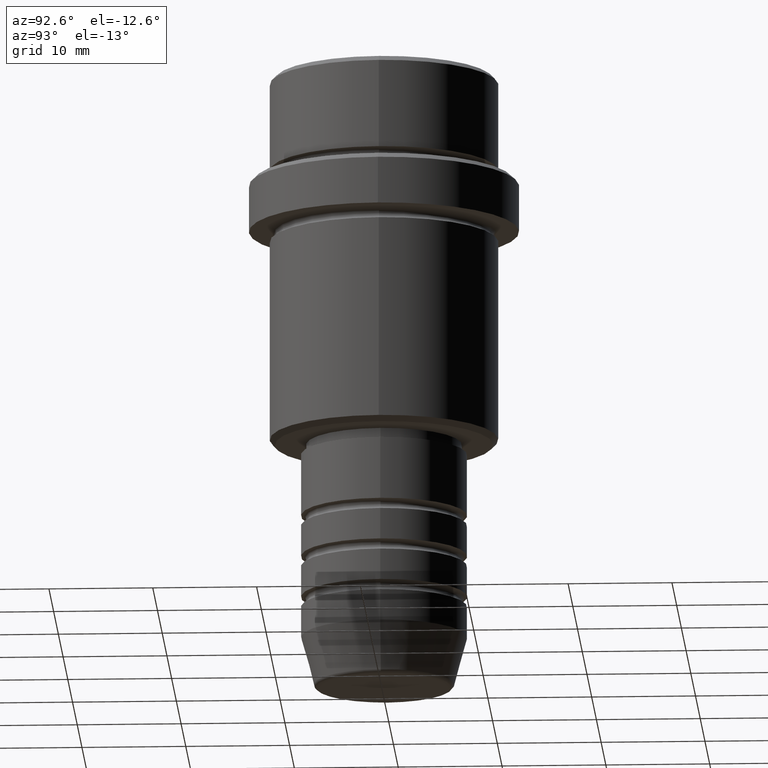
[diagram: clean part render]
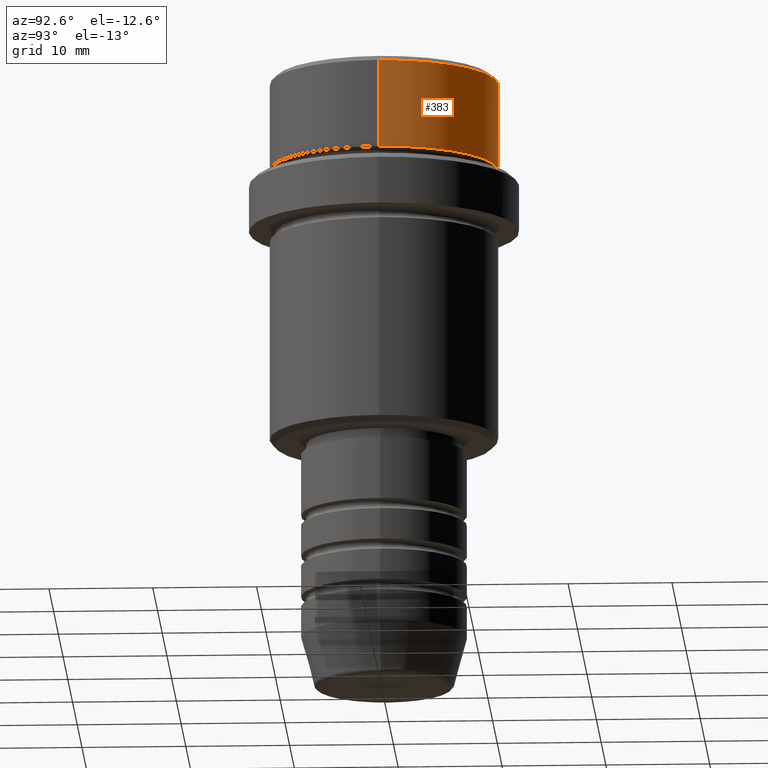
[diagram: same view with one face highlighted and labeled with its STEP entity id]
A machine part, auxiliary view. The second image highlights one B-rep face of the part: STEP entity #383.
In plain terms, the highlighted cylindrical surface (partial cylindrical patch) has radius 11 mm, axis along (-0, -0, 1).
Its self-contained STEP definition (entity closure, byte-faithful):
#22 = CIRCLE ( 'NONE', #325, 10.99999999999997158 ) ;
#50 = VERTEX_POINT ( 'NONE', #1085 ) ;
#65 = CIRCLE ( 'NONE', #181, 10.99999999999998757 ) ;
#70 = VERTEX_POINT ( 'NONE', #338 ) ;
#88 = ORIENTED_EDGE ( 'NONE', *, *, #248, .F. ) ;
#99 = EDGE_CURVE ( 'NONE', #239, #70, #1210, .T. ) ;
#181 = AXIS2_PLACEMENT_3D ( 'NONE', #370, #1166, #1334 ) ;
#188 = ORIENTED_EDGE ( 'NONE', *, *, #1290, .T. ) ;
#239 = VERTEX_POINT ( 'NONE', #252 ) ;
#248 = EDGE_CURVE ( 'NONE', #1148, #50, #914, .T. ) ;
#252 = CARTESIAN_POINT ( 'NONE',  ( -10.99999999999997158, 1.347111479062085841E-15, -9.000000000000000000 ) ) ;
#325 = AXIS2_PLACEMENT_3D ( 'NONE', #718, #509, #1260 ) ;
#338 = CARTESIAN_POINT ( 'NONE',  ( -10.99999999999998757, 1.347111479062086827E-15, -0.4999999999999813483 ) ) ;
#365 = DIRECTION ( 'NONE',  ( -0.000000000000000000, -0.000000000000000000, 1.000000000000000000 ) ) ;
#370 = CARTESIAN_POINT ( 'NONE',  ( 0.000000000000000000, 0.000000000000000000, -0.4999999999999813483 ) ) ;
#383 = ADVANCED_FACE ( 'NONE', ( #563 ), #1012, .T. ) ;
#430 = AXIS2_PLACEMENT_3D ( 'NONE', #1340, #365, #1319 ) ;
#509 = DIRECTION ( 'NONE',  ( -0.000000000000000000, -0.000000000000000000, 1.000000000000000000 ) ) ;
#563 = FACE_OUTER_BOUND ( 'NONE', #922, .T. ) ;
#718 = CARTESIAN_POINT ( 'NONE',  ( 0.000000000000000000, 0.000000000000000000, -9.000000000000000000 ) ) ;
#814 = VECTOR ( 'NONE', #863, 1000.000000000000000 ) ;
#863 = DIRECTION ( 'NONE',  ( -0.000000000000000000, -0.000000000000000000, 1.000000000000000000 ) ) ;
#914 = LINE ( 'NONE', #1337, #930 ) ;
#922 = EDGE_LOOP ( 'NONE', ( #188, #1143, #1241, #88 ) ) ;
#930 = VECTOR ( 'NONE', #1038, 1000.000000000000000 ) ;
#1012 = CYLINDRICAL_SURFACE ( 'NONE', #430, 10.99999999999998757 ) ;
#1038 = DIRECTION ( 'NONE',  ( -0.000000000000000000, -0.000000000000000000, 1.000000000000000000 ) ) ;
#1085 = CARTESIAN_POINT ( 'NONE',  ( 10.99999999999998757, 0.000000000000000000, -0.4999999999999813483 ) ) ;
#1111 = CARTESIAN_POINT ( 'NONE',  ( -10.99999999999998757, 1.347111479062086827E-15, 0.000000000000000000 ) ) ;
#1118 = EDGE_CURVE ( 'NONE', #70, #50, #65, .T. ) ;
#1143 = ORIENTED_EDGE ( 'NONE', *, *, #99, .T. ) ;
#1148 = VERTEX_POINT ( 'NONE', #1305 ) ;
#1166 = DIRECTION ( 'NONE',  ( 0.000000000000000000, 0.000000000000000000, -1.000000000000000000 ) ) ;
#1210 = LINE ( 'NONE', #1111, #814 ) ;
#1241 = ORIENTED_EDGE ( 'NONE', *, *, #1118, .T. ) ;
#1260 = DIRECTION ( 'NONE',  ( 1.000000000000000000, 0.000000000000000000, 0.000000000000000000 ) ) ;
#1290 = EDGE_CURVE ( 'NONE', #1148, #239, #22, .T. ) ;
#1305 = CARTESIAN_POINT ( 'NONE',  ( 10.99999999999997158, 0.000000000000000000, -9.000000000000000000 ) ) ;
#1319 = DIRECTION ( 'NONE',  ( 1.000000000000000000, 0.000000000000000000, 0.000000000000000000 ) ) ;
#1334 = DIRECTION ( 'NONE',  ( 1.000000000000000000, 0.000000000000000000, 0.000000000000000000 ) ) ;
#1337 = CARTESIAN_POINT ( 'NONE',  ( 10.99999999999998757, 0.000000000000000000, 0.000000000000000000 ) ) ;
#1340 = CARTESIAN_POINT ( 'NONE',  ( 0.000000000000000000, 0.000000000000000000, 0.000000000000000000 ) ) ;